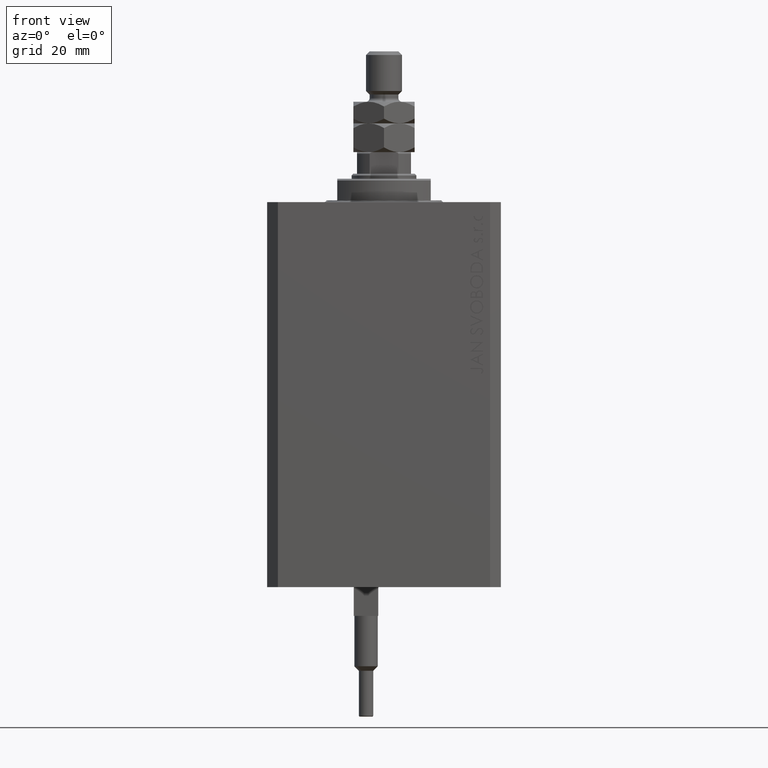
[diagram: clean part render]
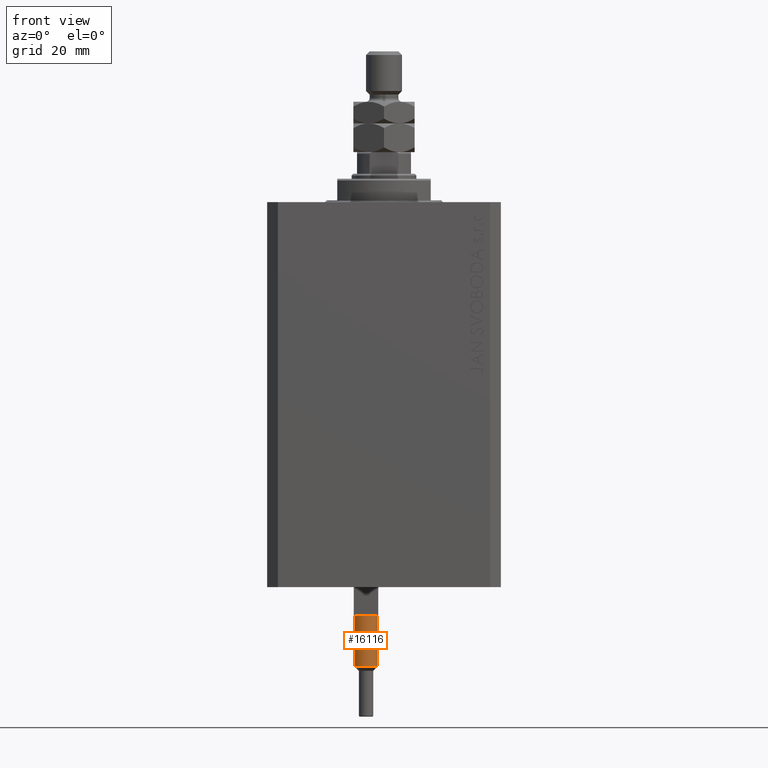
[diagram: same view with one face highlighted and labeled with its STEP entity id]
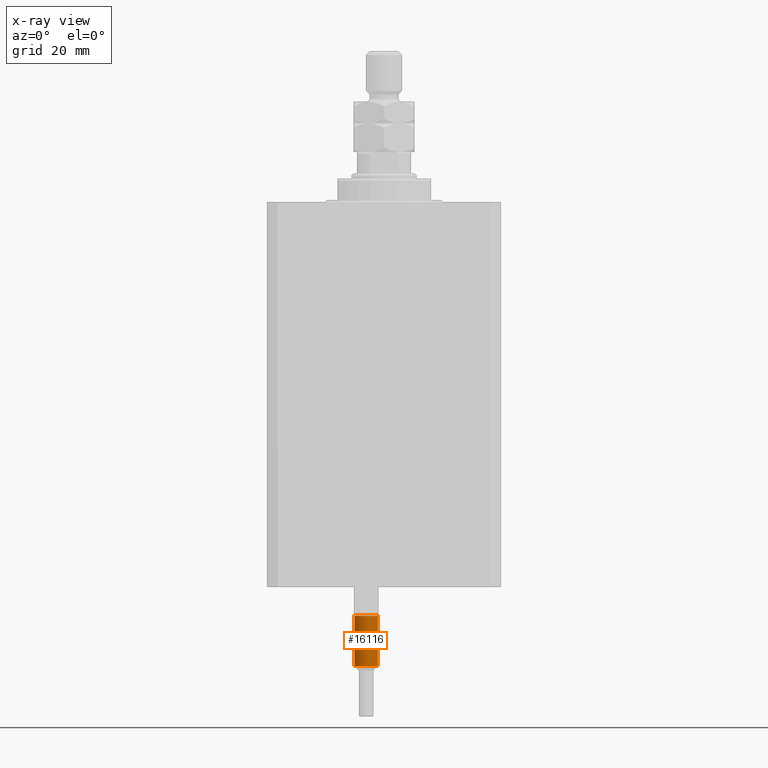
[diagram: x-ray of the same camera — body ghosted, the highlighted face saturated]
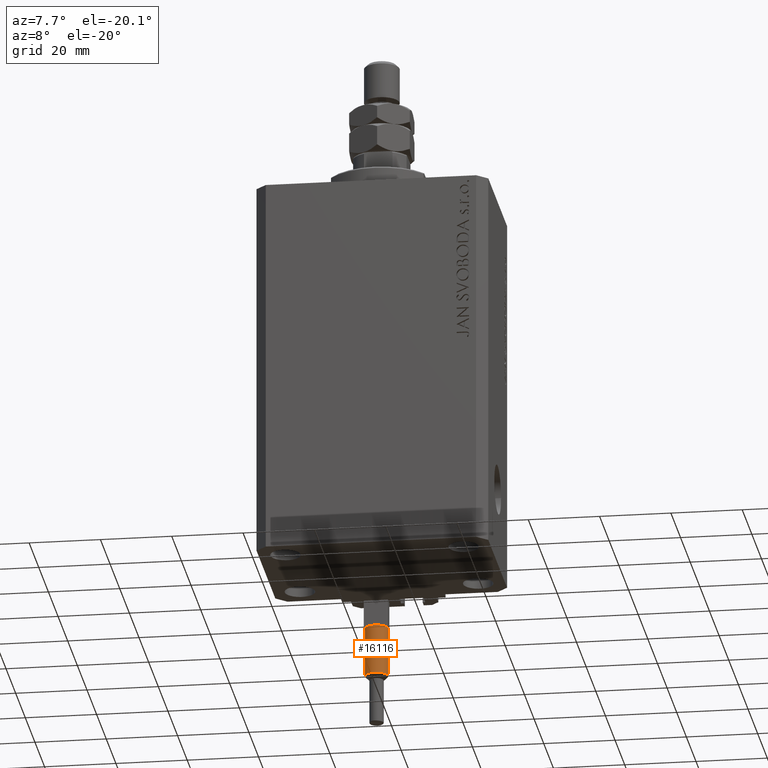
[diagram: same view with one face highlighted and labeled with its STEP entity id]
A machine part, front view. The second image highlights one B-rep face of the part: STEP entity #16116.
The next image is the same camera in x-ray: the body ghosted, the highlighted face saturated — about 0% of this face is hidden behind the body in this view.
A second angle (auxiliary view) of the same face is appended — the face is thin or edge-on in the first view.
In plain terms, the highlighted cylindrical surface (edge-blend (fillet) strip) has radius 3.25 mm, axis along (-0, -0, 1).
Its self-contained STEP definition (entity closure, byte-faithful):
#43 = EDGE_CURVE ( 'NONE', #45216, #1955, #46329, .T. ) ;
#1955 = VERTEX_POINT ( 'NONE', #48150 ) ;
#3553 = EDGE_CURVE ( 'NONE', #13184, #6458, #39178, .T. ) ;
#3944 = VERTEX_POINT ( 'NONE', #19212 ) ;
#4206 = DIRECTION ( 'NONE',  ( 0.000000000000000000, 0.000000000000000000, 1.000000000000000000 ) ) ;
#4864 = DIRECTION ( 'NONE',  ( -0.000000000000000000, -0.000000000000000000, -1.000000000000000000 ) ) ;
#5247 = CIRCLE ( 'NONE', #25444, 3.250000000000000444 ) ;
#6094 = CARTESIAN_POINT ( 'NONE',  ( 0.000000000000000000, 0.000000000000000000, 40.00000000000000000 ) ) ;
#6458 = VERTEX_POINT ( 'NONE', #48098 ) ;
#6639 = CARTESIAN_POINT ( 'NONE',  ( 2.883140648667699146, 1.500000000000000000, 40.00000000000000000 ) ) ;
#7621 = EDGE_CURVE ( 'NONE', #16521, #3944, #12300, .T. ) ;
#8064 = DIRECTION ( 'NONE',  ( 0.000000000000000000, 0.000000000000000000, -1.000000000000000000 ) ) ;
#9529 = EDGE_CURVE ( 'NONE', #13184, #45216, #16243, .T. ) ;
#10946 = CYLINDRICAL_SURFACE ( 'NONE', #23520, 3.250000000000000444 ) ;
#11636 = CARTESIAN_POINT ( 'NONE',  ( -3.250000000000000444, 0.000000000000000000, 56.00000000000000000 ) ) ;
#12163 = VECTOR ( 'NONE', #4864, 1000.000000000000000 ) ;
#12300 = CIRCLE ( 'NONE', #34679, 3.250000000000000444 ) ;
#13184 = VERTEX_POINT ( 'NONE', #31623 ) ;
#16116 = ADVANCED_FACE ( 'NONE', ( #30001 ), #10946, .T. ) ;
#16243 = CIRCLE ( 'NONE', #35521, 3.250000000000000444 ) ;
#16521 = VERTEX_POINT ( 'NONE', #6639 ) ;
#17109 = DIRECTION ( 'NONE',  ( 0.000000000000000000, 0.000000000000000000, 1.000000000000000000 ) ) ;
#18237 = ORIENTED_EDGE ( 'NONE', *, *, #9529, .T. ) ;
#19212 = CARTESIAN_POINT ( 'NONE',  ( -2.883140648667699146, 1.500000000000000000, 40.00000000000000000 ) ) ;
#22614 = DIRECTION ( 'NONE',  ( 1.000000000000000000, 0.000000000000000000, 0.000000000000000000 ) ) ;
#23029 = CARTESIAN_POINT ( 'NONE',  ( 3.250000000000000444, 3.980102097228898231E-16, 56.00000000000000000 ) ) ;
#23462 = ORIENTED_EDGE ( 'NONE', *, *, #43, .T. ) ;
#23520 = AXIS2_PLACEMENT_3D ( 'NONE', #40773, #33732, #48553 ) ;
#23761 = EDGE_CURVE ( 'NONE', #3944, #6458, #5247, .T. ) ;
#25444 = AXIS2_PLACEMENT_3D ( 'NONE', #49331, #4206, #45572 ) ;
#27105 = EDGE_CURVE ( 'NONE', #1955, #16521, #27591, .T. ) ;
#27591 = CIRCLE ( 'NONE', #34792, 3.250000000000000444 ) ;
#28789 = ORIENTED_EDGE ( 'NONE', *, *, #7621, .T. ) ;
#29463 = ORIENTED_EDGE ( 'NONE', *, *, #27105, .T. ) ;
#30001 = FACE_OUTER_BOUND ( 'NONE', #45099, .T. ) ;
#30306 = DIRECTION ( 'NONE',  ( -0.000000000000000000, -0.000000000000000000, -1.000000000000000000 ) ) ;
#30459 = DIRECTION ( 'NONE',  ( 0.000000000000000000, 0.000000000000000000, 1.000000000000000000 ) ) ;
#31623 = CARTESIAN_POINT ( 'NONE',  ( -3.250000000000000444, 0.000000000000000000, 53.99999999999998579 ) ) ;
#32517 = ORIENTED_EDGE ( 'NONE', *, *, #23761, .T. ) ;
#32877 = DIRECTION ( 'NONE',  ( 1.000000000000000000, 0.000000000000000000, 0.000000000000000000 ) ) ;
#33732 = DIRECTION ( 'NONE',  ( -0.000000000000000000, -0.000000000000000000, -1.000000000000000000 ) ) ;
#33898 = ORIENTED_EDGE ( 'NONE', *, *, #3553, .F. ) ;
#34679 = AXIS2_PLACEMENT_3D ( 'NONE', #41478, #30459, #38200 ) ;
#34792 = AXIS2_PLACEMENT_3D ( 'NONE', #6094, #17109, #32877 ) ;
#35521 = AXIS2_PLACEMENT_3D ( 'NONE', #42383, #8064, #22614 ) ;
#38200 = DIRECTION ( 'NONE',  ( 1.000000000000000000, 0.000000000000000000, 0.000000000000000000 ) ) ;
#38425 = VECTOR ( 'NONE', #30306, 1000.000000000000000 ) ;
#38704 = CARTESIAN_POINT ( 'NONE',  ( 3.250000000000000444, 3.980102097228898231E-16, 53.99999999999998579 ) ) ;
#39178 = LINE ( 'NONE', #11636, #12163 ) ;
#40773 = CARTESIAN_POINT ( 'NONE',  ( 0.000000000000000000, 0.000000000000000000, 56.00000000000000000 ) ) ;
#41478 = CARTESIAN_POINT ( 'NONE',  ( 0.000000000000000000, 0.000000000000000000, 40.00000000000000000 ) ) ;
#42383 = CARTESIAN_POINT ( 'NONE',  ( 0.000000000000000000, 0.000000000000000000, 53.99999999999998579 ) ) ;
#45099 = EDGE_LOOP ( 'NONE', ( #18237, #23462, #29463, #28789, #32517, #33898 ) ) ;
#45216 = VERTEX_POINT ( 'NONE', #38704 ) ;
#45572 = DIRECTION ( 'NONE',  ( 1.000000000000000000, 0.000000000000000000, 0.000000000000000000 ) ) ;
#46329 = LINE ( 'NONE', #23029, #38425 ) ;
#48098 = CARTESIAN_POINT ( 'NONE',  ( -3.250000000000000444, 0.000000000000000000, 40.00000000000000000 ) ) ;
#48150 = CARTESIAN_POINT ( 'NONE',  ( 3.250000000000000444, 3.980102097228898231E-16, 40.00000000000000000 ) ) ;
#48553 = DIRECTION ( 'NONE',  ( -1.000000000000000000, 0.000000000000000000, 0.000000000000000000 ) ) ;
#49331 = CARTESIAN_POINT ( 'NONE',  ( 0.000000000000000000, 0.000000000000000000, 40.00000000000000000 ) ) ;